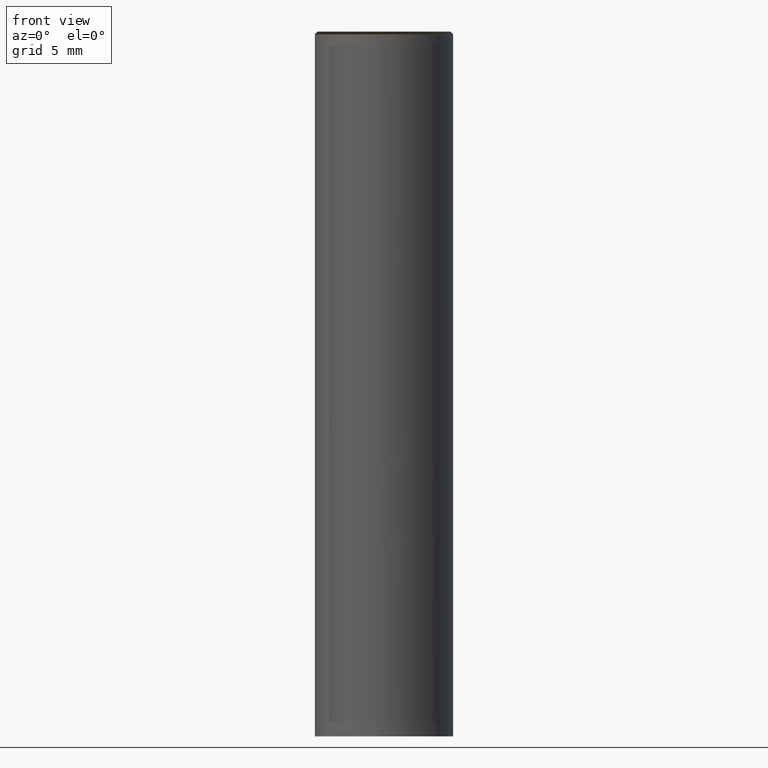
[diagram: clean part render]
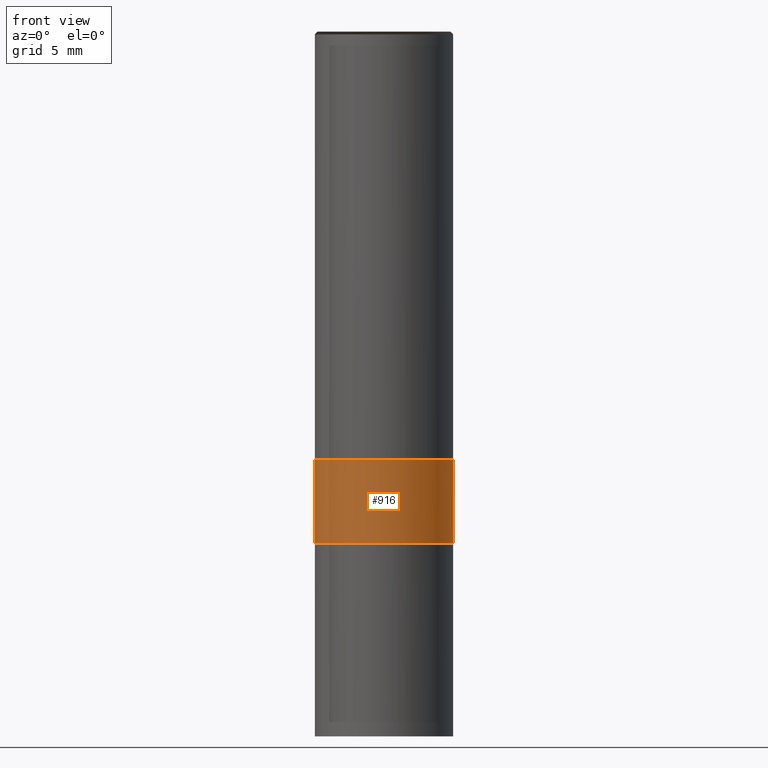
[diagram: same view with one face highlighted and labeled with its STEP entity id]
A machine part, front view. The second image highlights one B-rep face of the part: STEP entity #916.
In plain terms, the highlighted face is a freeform B-spline surface patch.
Its self-contained STEP definition (entity closure, byte-faithful):
#639=CARTESIAN_POINT('',(5.0,0.0,-6.0));
#643=CARTESIAN_POINT('',(-5.0,0.0,-6.0));
#647=CARTESIAN_POINT('',(-5.0,-5.0,-6.0));
#648=CARTESIAN_POINT('',(0.0,-5.0,-6.0));
#649=CARTESIAN_POINT('',(5.0,-5.0,-6.0));
#650=CARTESIAN_POINT('',(5.0,0.0,0.0));
#654=CARTESIAN_POINT('',(-5.0,0.0,0.0));
#666=CARTESIAN_POINT('',(-5.0,-5.0,0.0));
#667=CARTESIAN_POINT('',(0.0,-5.0,0.0));
#668=CARTESIAN_POINT('',(5.0,-5.0,0.0));
#897=(
BOUNDED_SURFACE()
B_SPLINE_SURFACE(1,2,(
(#643,#647,#648,#649,#639),
(#654,#666,#667,#668,#650)
), .UNSPECIFIED.,.F.,.F.,.F.)
B_SPLINE_SURFACE_WITH_KNOTS((2,2),(3,2,3),(
0.0,1.0),(
0.0,0.5,1.0), .UNSPECIFIED.)
GEOMETRIC_REPRESENTATION_ITEM()
RATIONAL_B_SPLINE_SURFACE(((1.0,0.707106781187,1.0,0.707106781187,1.0),
(1.0,0.707106781187,1.0,0.707106781187,1.0)
))
REPRESENTATION_ITEM('')
SURFACE()
);
#898=(
BOUNDED_CURVE()
B_SPLINE_CURVE(2,(#639,#649,#648,#647,#643),.UNSPECIFIED.,.F.,.F.)
B_SPLINE_CURVE_WITH_KNOTS((3,2,3),
(0.0,0.5,1.0),.UNSPECIFIED.)
CURVE()
GEOMETRIC_REPRESENTATION_ITEM()
RATIONAL_B_SPLINE_CURVE((1.0,0.707106781187,1.0,0.707106781187,1.0))
REPRESENTATION_ITEM('')
);
#899=(
BOUNDED_CURVE()
B_SPLINE_CURVE(1,(#643,#654),.UNSPECIFIED.,.F.,.F.)
B_SPLINE_CURVE_WITH_KNOTS((2,2),
(0.0,1.0),.UNSPECIFIED.)
CURVE()
GEOMETRIC_REPRESENTATION_ITEM()
RATIONAL_B_SPLINE_CURVE((1.0,1.0))
REPRESENTATION_ITEM('')
);
#900=(
BOUNDED_CURVE()
B_SPLINE_CURVE(2,(#654,#666,#667,#668,#650),.UNSPECIFIED.,.F.,.F.)
B_SPLINE_CURVE_WITH_KNOTS((3,2,3),
(0.0,0.5,1.0),.UNSPECIFIED.)
CURVE()
GEOMETRIC_REPRESENTATION_ITEM()
RATIONAL_B_SPLINE_CURVE((1.0,0.707106781187,1.0,0.707106781187,1.0))
REPRESENTATION_ITEM('')
);
#901=(
BOUNDED_CURVE()
B_SPLINE_CURVE(1,(#650,#639),.UNSPECIFIED.,.F.,.F.)
B_SPLINE_CURVE_WITH_KNOTS((2,2),
(0.0,1.0),.UNSPECIFIED.)
CURVE()
GEOMETRIC_REPRESENTATION_ITEM()
RATIONAL_B_SPLINE_CURVE((1.0,1.0))
REPRESENTATION_ITEM('')
);
#902=VERTEX_POINT('',#639);
#903=VERTEX_POINT('',#643);
#904=VERTEX_POINT('',#650);
#905=VERTEX_POINT('',#654);
#906=EDGE_CURVE('',#902,#903,#898,.T.);
#907=EDGE_CURVE('',#903,#905,#899,.T.);
#908=EDGE_CURVE('',#905,#904,#900,.T.);
#909=EDGE_CURVE('',#904,#902,#901,.T.);
#910=ORIENTED_EDGE('',*,*,#906,.T.);
#911=ORIENTED_EDGE('',*,*,#907,.T.);
#912=ORIENTED_EDGE('',*,*,#908,.T.);
#913=ORIENTED_EDGE('',*,*,#909,.T.);
#914=EDGE_LOOP('',(#910,#911,#912,#913));
#915=FACE_OUTER_BOUND('',#914,.T.);
#916=ADVANCED_FACE('',(#915),#897,.T.);